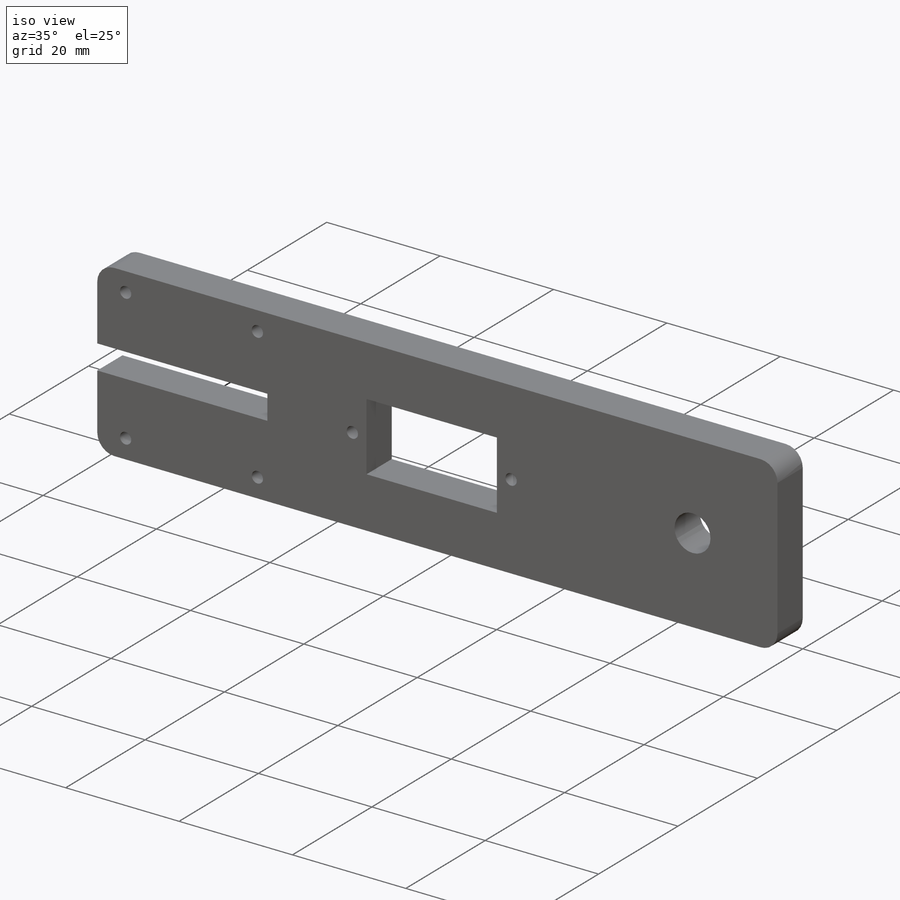
[diagram: iso view]
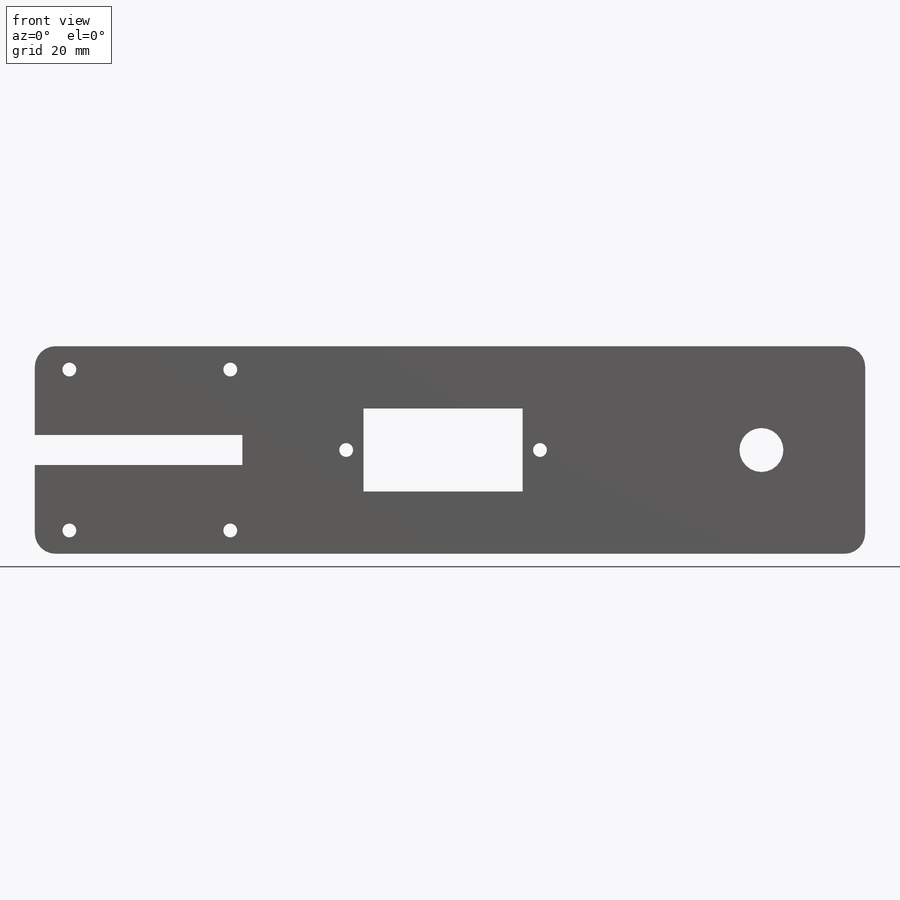
[diagram: front view]
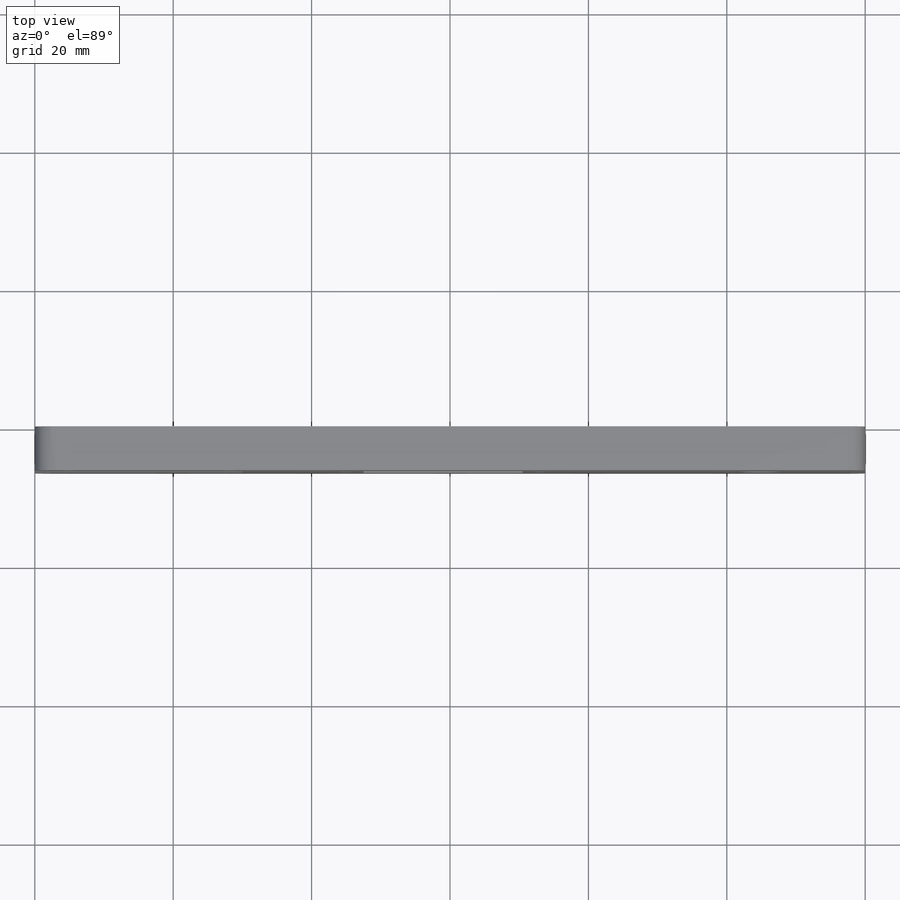
[diagram: top view]
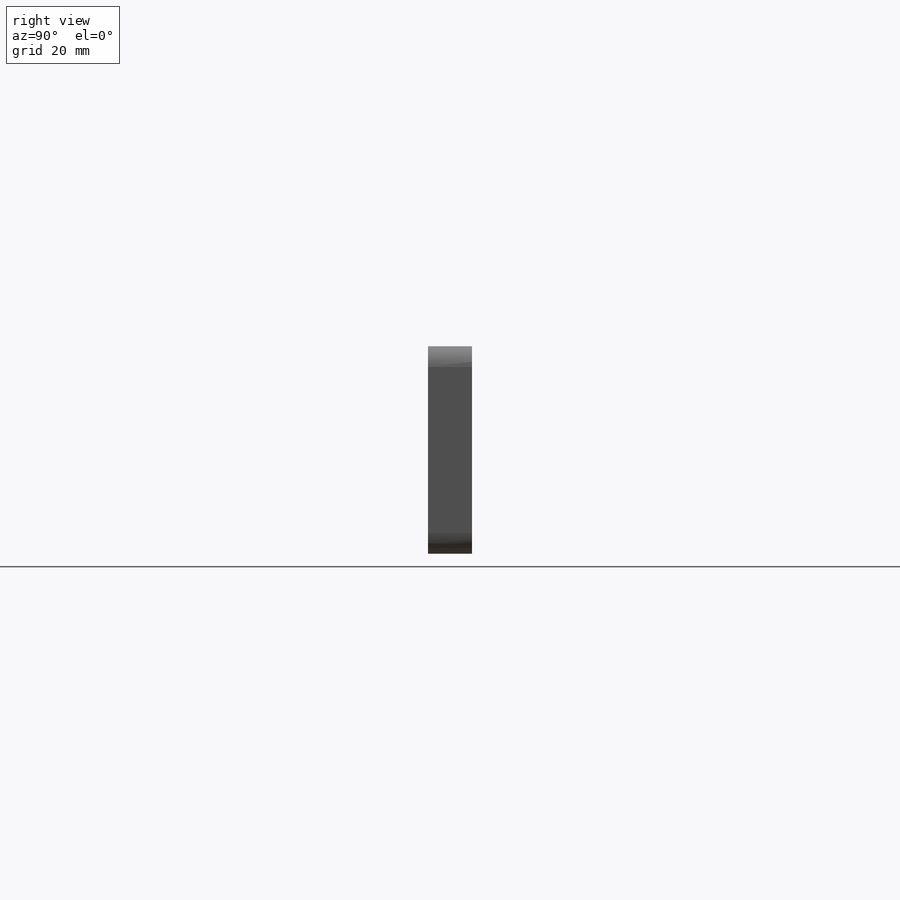
[diagram: right view]
SOLIDWORKS PART (.sldprt)
format: sldprt  version: not decoded by parser v0  size: 471,552 bytes
history: native  units: mm
features: sketch x11, thread x6, hole x3, material x1, extrude x1, fillet x1, cut_extrude x1 (+11 scaffold rows collapsed)
feature tree (35):
  scaffold x11  (default folders/planes/origin — collapsed)
  material  "Balsa"
  sketch  "Sketch1"  dims[D1=30.0mm D2=120.0mm D3=4.318mm D4=30.0mm]
  extrude  "main shape"  Depth=6.35mm
  fillet  "Fillet1"  Radius=3mm
  sketch  "elbow X mount hole locations"  dims[D1=23.25mm D2=23.25mm D3=5.0mm D4=5.0mm]
  hole  "elbow X mount holes"  Diameter=1.9939mm Depth=7.67mm
  sketch  "Sketch4"
  sketch  "Sketch3"  dims[hole-wizard template sketch: 47 standard entries collapsed; hole parameters kept: c15.Tap Drill Depth=7.67mm c15.D3=~14.816244mm c15.Drill Angle=118.0deg]
  thread  "Hole Thread1"  Diameter=5.03mm  [1 undecoded]
  thread  "Hole Thread2"  Diameter=5.03mm  [1 undecoded]
  thread  "Hole Thread3"  Diameter=5.03mm  [1 undecoded]
  thread  "Hole Thread4"  Diameter=5.03mm  [1 undecoded]
  sketch  "cutout for elbow support"
  sketch  "Sketch6"  dims[D1=28.0mm D2=45.0mm D3=23.0mm D4=12.0mm]
  cut_extrude  "cutout for wrist servo"  [1 undecoded]
  hole  "wrist servo mounting holes"  [1 undecoded]
  sketch  "Sketch8"
  thread  "Hole Thread5"  Diameter=2.5146mm  [1 undecoded]
  thread  "Hole Thread6"  Diameter=2.5146mm  [1 undecoded]
  sketch  "Sketch7"  dims[hole-wizard template sketch: 59 standard entries collapsed; hole parameters kept: c18.Thru Tap Drill Dia.=1.9939mm c18.Thru Tap Drill Depth=6.35mm]
  sketch  "wrist dowel hole location"  dims[D1=15.0mm]
  hole  "1/4 (0.25) Diameter Hole (for wrist dowel)"  Diameter=6.35mm Depth=18mm
  sketch  "Sketch12"
  sketch  "Sketch11"  dims[hole-wizard template sketch: 47 standard entries collapsed; hole parameters kept: c15.Hole Depth=18.0mm c15.D3=~14.816244mm c15.Drill Angle=118.0deg]
decode coverage: 17 of 23 modeling features carry decoded parameters
note: ~ marks probable driven/reference dimensions
note: 8 parameter values undecoded
note: suppression state not decoded; provenance and decode notes live in map.json
